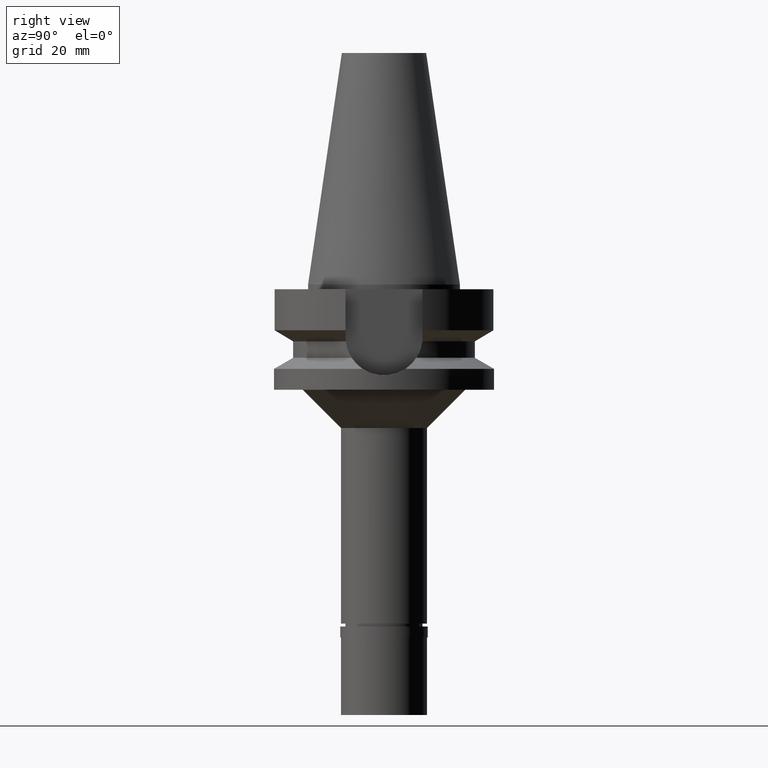
[diagram: clean part render]
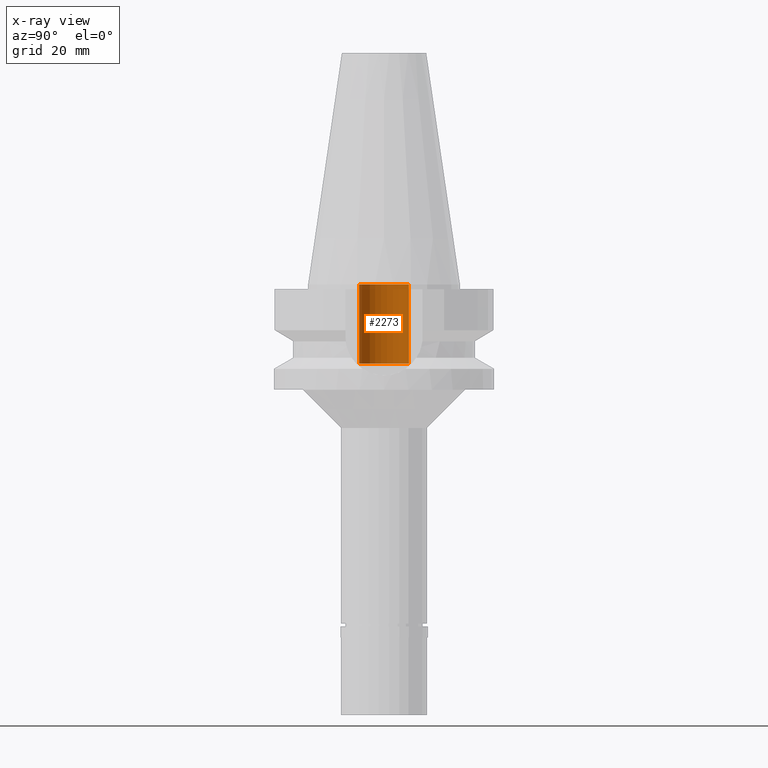
[diagram: x-ray — body ghosted, one internal face saturated and labeled with its STEP entity id]
A machine part, right view, then the same camera in x-ray: the body is ghosted and one INTERNAL B-rep face — a face not visible from any outside direction — is saturated and labeled: STEP entity #2273.
In plain terms, the highlighted cylindrical surface (edge-blend (fillet) strip) has radius 5.2 mm, axis along (0, 0, -1).
Its self-contained STEP definition (entity closure, byte-faithful):
#3 = EDGE_CURVE ( 'NONE', #912, #71, #2149, .T. ) ;
#15 = ORIENTED_EDGE ( 'NONE', *, *, #422, .F. ) ;
#34 = DIRECTION ( 'NONE',  ( 0.0000000000000000000, -1.000000000000000000, 0.0000000000000000000 ) ) ;
#71 = VERTEX_POINT ( 'NONE', #673 ) ;
#133 = CARTESIAN_POINT ( 'NONE',  ( 0.0000000000000000000, -5.200000000000000178, 0.0000000000000000000 ) ) ;
#149 = CARTESIAN_POINT ( 'NONE',  ( 0.0000000000000000000, -5.200000000000000178, -16.60000000000000142 ) ) ;
#203 = ORIENTED_EDGE ( 'NONE', *, *, #2638, .T. ) ;
#249 = DIRECTION ( 'NONE',  ( 0.0000000000000000000, 0.0000000000000000000, -1.000000000000000000 ) ) ;
#334 = VECTOR ( 'NONE', #2585, 1000.000000000000000 ) ;
#404 = CARTESIAN_POINT ( 'NONE',  ( 0.0000000000000000000, 1.899304720797999717E-14, 0.0000000000000000000 ) ) ;
#417 = AXIS2_PLACEMENT_3D ( 'NONE', #2462, #249, #34 ) ;
#422 = EDGE_CURVE ( 'NONE', #610, #1659, #1514, .T. ) ;
#446 = EDGE_CURVE ( 'NONE', #1659, #71, #1376, .T. ) ;
#504 = VECTOR ( 'NONE', #2494, 1000.000000000000000 ) ;
#589 = FACE_OUTER_BOUND ( 'NONE', #1983, .T. ) ;
#595 = AXIS2_PLACEMENT_3D ( 'NONE', #404, #1754, #1540 ) ;
#610 = VERTEX_POINT ( 'NONE', #149 ) ;
#673 = CARTESIAN_POINT ( 'NONE',  ( 0.0000000000000000000, 5.200000000000000178, 0.0000000000000000000 ) ) ;
#717 = CARTESIAN_POINT ( 'NONE',  ( 0.0000000000000000000, 5.200000000000000178, -16.60000000000000142 ) ) ;
#912 = VERTEX_POINT ( 'NONE', #717 ) ;
#929 = CIRCLE ( 'NONE', #417, 5.200000000000000178 ) ;
#1072 = CYLINDRICAL_SURFACE ( 'NONE', #2152, 5.200000000000000178 ) ;
#1097 = CARTESIAN_POINT ( 'NONE',  ( 0.0000000000000000000, 1.899304720797999717E-14, 55.09000000000000341 ) ) ;
#1298 = ORIENTED_EDGE ( 'NONE', *, *, #3, .T. ) ;
#1376 = CIRCLE ( 'NONE', #595, 5.200000000000000178 ) ;
#1514 = LINE ( 'NONE', #1704, #334 ) ;
#1540 = DIRECTION ( 'NONE',  ( 0.0000000000000000000, -1.000000000000000000, 0.0000000000000000000 ) ) ;
#1550 = CARTESIAN_POINT ( 'NONE',  ( 0.0000000000000000000, 5.200000000000000178, -16.60000000000000142 ) ) ;
#1568 = ORIENTED_EDGE ( 'NONE', *, *, #446, .F. ) ;
#1659 = VERTEX_POINT ( 'NONE', #133 ) ;
#1704 = CARTESIAN_POINT ( 'NONE',  ( 0.0000000000000000000, -5.200000000000000178, -16.60000000000000142 ) ) ;
#1746 = DIRECTION ( 'NONE',  ( 0.0000000000000000000, -1.000000000000000000, 0.0000000000000000000 ) ) ;
#1754 = DIRECTION ( 'NONE',  ( 0.0000000000000000000, 0.0000000000000000000, -1.000000000000000000 ) ) ;
#1967 = DIRECTION ( 'NONE',  ( 0.0000000000000000000, 0.0000000000000000000, -1.000000000000000000 ) ) ;
#1983 = EDGE_LOOP ( 'NONE', ( #1568, #15, #203, #1298 ) ) ;
#2149 = LINE ( 'NONE', #1550, #504 ) ;
#2152 = AXIS2_PLACEMENT_3D ( 'NONE', #1097, #1967, #1746 ) ;
#2273 = ADVANCED_FACE ( 'NONE', ( #589 ), #1072, .F. ) ;
#2462 = CARTESIAN_POINT ( 'NONE',  ( 0.0000000000000000000, 1.899304720797999717E-14, -16.60000000000000142 ) ) ;
#2494 = DIRECTION ( 'NONE',  ( 0.0000000000000000000, 0.0000000000000000000, 1.000000000000000000 ) ) ;
#2585 = DIRECTION ( 'NONE',  ( 0.0000000000000000000, 0.0000000000000000000, 1.000000000000000000 ) ) ;
#2638 = EDGE_CURVE ( 'NONE', #610, #912, #929, .T. ) ;